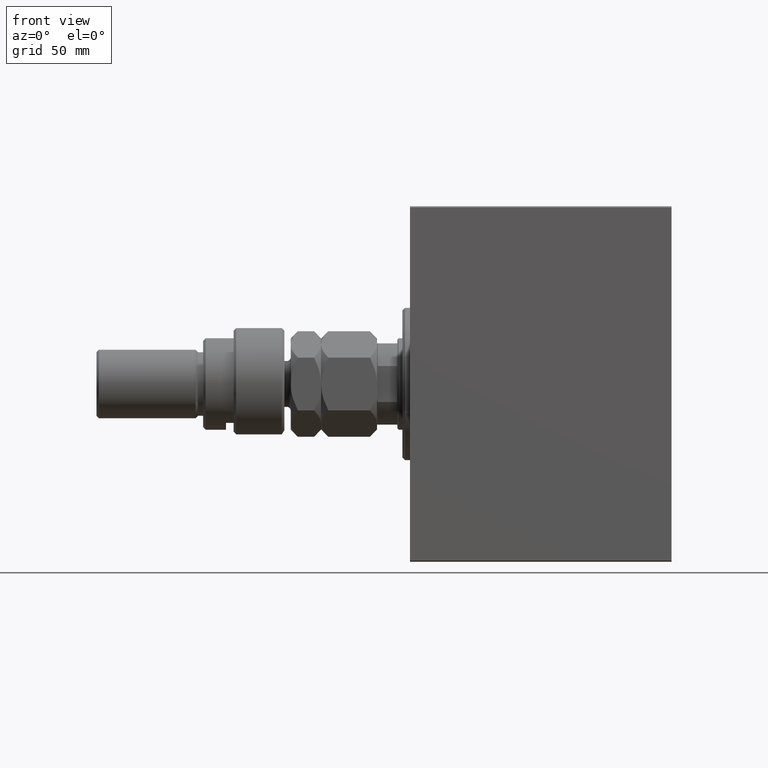
[diagram: clean part render]
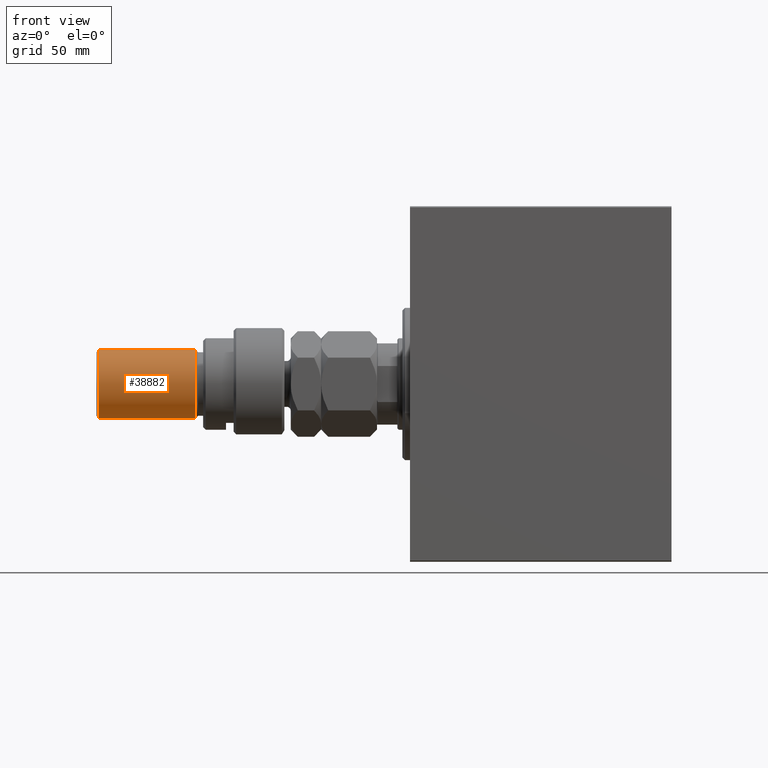
[diagram: same view with one face highlighted and labeled with its STEP entity id]
A machine part, front view. The second image highlights one B-rep face of the part: STEP entity #38882.
In plain terms, the highlighted cylindrical surface (edge-blend (fillet) strip) has radius 13.5 mm, axis along (1, -0, -0).
Its self-contained STEP definition (entity closure, byte-faithful):
#186 = EDGE_CURVE ( 'NONE', #45929, #32909, #7058, .T. ) ;
#2081 = CIRCLE ( 'NONE', #8113, 13.50000000000000000 ) ;
#2980 = CARTESIAN_POINT ( 'NONE',  ( 13.50000000000000000, 1.653273178848926867E-15, 34.99999999999999289 ) ) ;
#4269 = CYLINDRICAL_SURFACE ( 'NONE', #10062, 13.50000000000000000 ) ;
#4437 = EDGE_CURVE ( 'NONE', #20280, #18490, #2081, .T. ) ;
#5554 = VECTOR ( 'NONE', #26346, 1000.000000000000000 ) ;
#5614 = CARTESIAN_POINT ( 'NONE',  ( 0.000000000000000000, 0.000000000000000000, 34.99999999999999289 ) ) ;
#6786 = CARTESIAN_POINT ( 'NONE',  ( 0.000000000000000000, 0.000000000000000000, 73.00000000000001421 ) ) ;
#7040 = ORIENTED_EDGE ( 'NONE', *, *, #23893, .F. ) ;
#7058 = CIRCLE ( 'NONE', #17602, 13.50000000000000000 ) ;
#8032 = DIRECTION ( 'NONE',  ( -1.000000000000000000, 0.000000000000000000, 0.000000000000000000 ) ) ;
#8113 = AXIS2_PLACEMENT_3D ( 'NONE', #6786, #16716, #45514 ) ;
#8173 = LINE ( 'NONE', #30570, #5554 ) ;
#8363 = CARTESIAN_POINT ( 'NONE',  ( -13.50000000000000000, 0.000000000000000000, 74.00000000000001421 ) ) ;
#8913 = DIRECTION ( 'NONE',  ( -0.000000000000000000, -0.000000000000000000, 1.000000000000000000 ) ) ;
#10062 = AXIS2_PLACEMENT_3D ( 'NONE', #18658, #33048, #8032 ) ;
#11068 = EDGE_CURVE ( 'NONE', #18490, #45929, #15692, .T. ) ;
#11972 = CARTESIAN_POINT ( 'NONE',  ( -13.50000000000000000, 0.000000000000000000, 73.00000000000001421 ) ) ;
#15692 = LINE ( 'NONE', #8363, #21850 ) ;
#16716 = DIRECTION ( 'NONE',  ( 0.000000000000000000, 0.000000000000000000, -1.000000000000000000 ) ) ;
#16844 = ORIENTED_EDGE ( 'NONE', *, *, #11068, .T. ) ;
#17602 = AXIS2_PLACEMENT_3D ( 'NONE', #5614, #8913, #34618 ) ;
#18490 = VERTEX_POINT ( 'NONE', #11972 ) ;
#18658 = CARTESIAN_POINT ( 'NONE',  ( 0.000000000000000000, 0.000000000000000000, 74.00000000000001421 ) ) ;
#20165 = ORIENTED_EDGE ( 'NONE', *, *, #4437, .T. ) ;
#20280 = VERTEX_POINT ( 'NONE', #44808 ) ;
#21850 = VECTOR ( 'NONE', #26541, 1000.000000000000000 ) ;
#23893 = EDGE_CURVE ( 'NONE', #20280, #32909, #8173, .T. ) ;
#25984 = FACE_OUTER_BOUND ( 'NONE', #27307, .T. ) ;
#26346 = DIRECTION ( 'NONE',  ( -0.000000000000000000, -0.000000000000000000, -1.000000000000000000 ) ) ;
#26541 = DIRECTION ( 'NONE',  ( -0.000000000000000000, -0.000000000000000000, -1.000000000000000000 ) ) ;
#27307 = EDGE_LOOP ( 'NONE', ( #7040, #20165, #16844, #34449 ) ) ;
#30570 = CARTESIAN_POINT ( 'NONE',  ( 13.50000000000000000, 1.653273178848926867E-15, 74.00000000000001421 ) ) ;
#32909 = VERTEX_POINT ( 'NONE', #2980 ) ;
#33048 = DIRECTION ( 'NONE',  ( -0.000000000000000000, -0.000000000000000000, -1.000000000000000000 ) ) ;
#34449 = ORIENTED_EDGE ( 'NONE', *, *, #186, .T. ) ;
#34618 = DIRECTION ( 'NONE',  ( 1.000000000000000000, 0.000000000000000000, 0.000000000000000000 ) ) ;
#38221 = CARTESIAN_POINT ( 'NONE',  ( -13.50000000000000000, 0.000000000000000000, 34.99999999999999289 ) ) ;
#38882 = ADVANCED_FACE ( 'NONE', ( #25984 ), #4269, .T. ) ;
#44808 = CARTESIAN_POINT ( 'NONE',  ( 13.50000000000000000, 1.653273178848926867E-15, 73.00000000000001421 ) ) ;
#45514 = DIRECTION ( 'NONE',  ( 1.000000000000000000, 0.000000000000000000, 0.000000000000000000 ) ) ;
#45929 = VERTEX_POINT ( 'NONE', #38221 ) ;